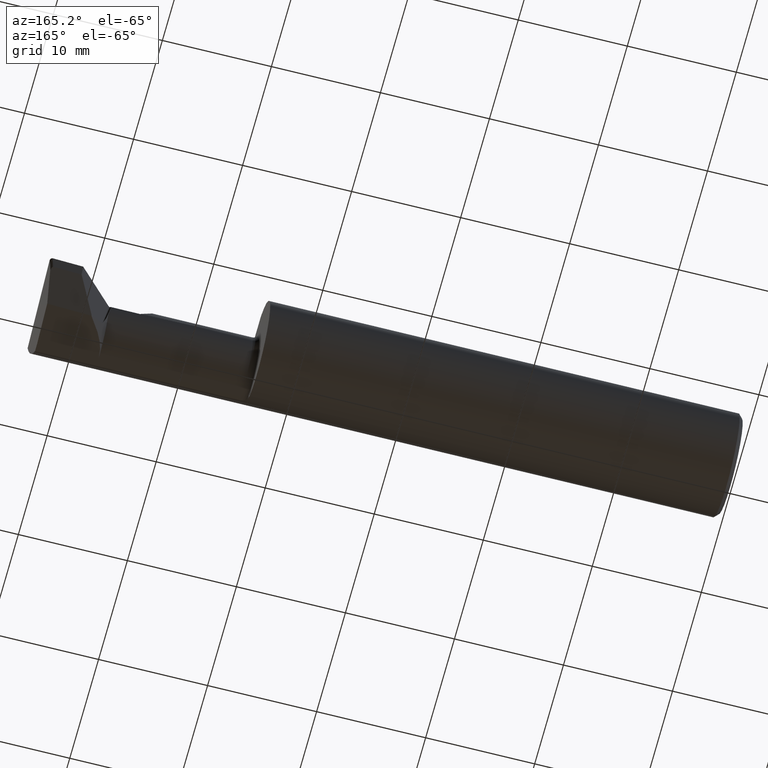
[diagram: clean part render]
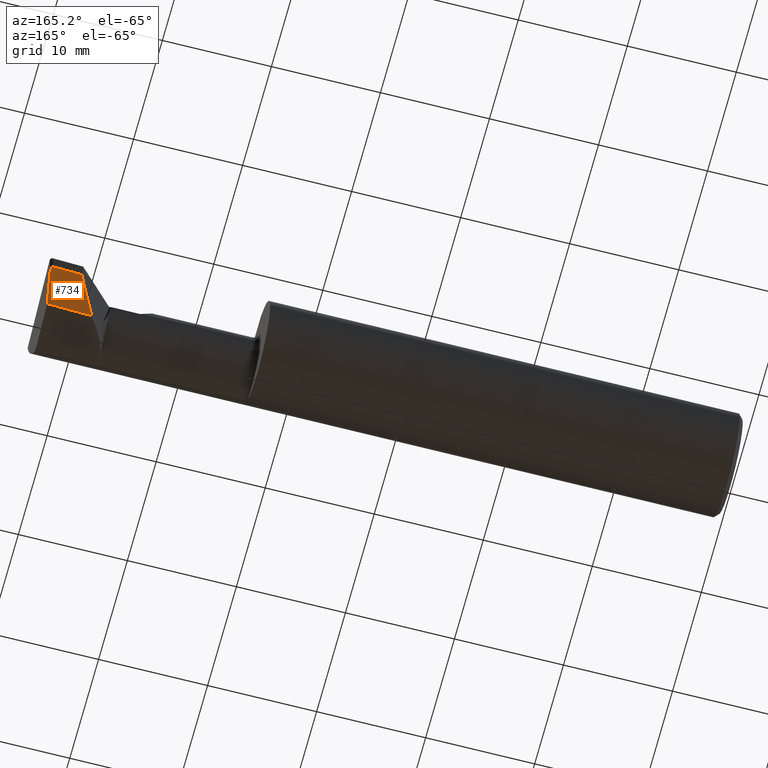
[diagram: same view with one face highlighted and labeled with its STEP entity id]
A machine part, auxiliary view. The second image highlights one B-rep face of the part: STEP entity #734.
In plain terms, the highlighted planar face has unit normal (0.0247, -0.7067, 0.7071).
Its self-contained STEP definition (entity closure, byte-faithful):
#6 = CARTESIAN_POINT ( 'NONE',  ( 2.494282959874854377, 0.1504604513405773947, -0.04698094005957075686 ) ) ;
#36 = EDGE_CURVE ( 'NONE', #881, #189, #136, .T. ) ;
#48 = ORIENTED_EDGE ( 'NONE', *, *, #197, .T. ) ;
#54 = CARTESIAN_POINT ( 'NONE',  ( 2.485072144401530903, 0.1571211000538173530, -0.04000289600932369766 ) ) ;
#73 = CARTESIAN_POINT ( 'NONE',  ( 2.320694845122096339, 0.05579781248120305875, -0.1355277751586456969 ) ) ;
#81 = ORIENTED_EDGE ( 'NONE', *, *, #36, .T. ) ;
#96 = CARTESIAN_POINT ( 'NONE',  ( -0.005608434879347946704, -0.02791221989950442781, -0.1380000000000000115 ) ) ;
#116 = CARTESIAN_POINT ( 'NONE',  ( 2.320621603346205042, 0.05497127617536411159, -0.1363512518597831957 ) ) ;
#122 = DIRECTION ( 'NONE',  ( 0.000000000000000000, -0.7073221891495887759, -0.7068913075831625425 ) ) ;
#132 = VERTEX_POINT ( 'NONE', #73 ) ;
#134 = PLANE ( 'NONE',  #397 ) ;
#136 =( BOUNDED_CURVE ( )  B_SPLINE_CURVE ( 3, ( #184, #475, #6, #842 ),
 .UNSPECIFIED., .F., .T. ) 
 B_SPLINE_CURVE_WITH_KNOTS ( ( 4, 4 ),
 ( 3.113460290453720081, 4.684741570447443770 ),
 .UNSPECIFIED. ) 
 CURVE ( )  GEOMETRIC_REPRESENTATION_ITEM ( )  RATIONAL_B_SPLINE_CURVE ( ( 1.000000000000000000, 0.8046235357022444301, 0.8046235357022444301, 1.000000000000000000 ) ) 
 REPRESENTATION_ITEM ( '' )  );
#156 = ORIENTED_EDGE ( 'NONE', *, *, #311, .T. ) ;
#184 = CARTESIAN_POINT ( 'NONE',  ( 2.485183491383149867, 0.1571191936351356011, -0.04000868722028459029 ) ) ;
#189 = VERTEX_POINT ( 'NONE', #224 ) ;
#197 = EDGE_CURVE ( 'NONE', #132, #514, #454, .T. ) ;
#199 = VERTEX_POINT ( 'NONE', #519 ) ;
#221 = CARTESIAN_POINT ( 'NONE',  ( 2.485183491383149867, 0.1571191936351356011, -0.04000868722028459029 ) ) ;
#224 = CARTESIAN_POINT ( 'NONE',  ( 2.493002116402539770, 0.1412880563531996037, -0.05610304667921357791 ) ) ;
#226 = VECTOR ( 'NONE', #317, 39.37007874015748854 ) ;
#235 = DIRECTION ( 'NONE',  ( -0.9993908270190960952, -0.03489949670248749386, 0.000000000000000000 ) ) ;
#241 = VECTOR ( 'NONE', #808, 39.37007874015748854 ) ;
#260 =( BOUNDED_CURVE ( )  B_SPLINE_CURVE ( 3, ( #741, #532, #54, #683 ),
 .UNSPECIFIED., .F., .F. ) 
 B_SPLINE_CURVE_WITH_KNOTS ( ( 4, 4 ),
 ( 3.080059520050154820, 3.113460290453720081 ),
 .UNSPECIFIED. ) 
 CURVE ( )  GEOMETRIC_REPRESENTATION_ITEM ( )  RATIONAL_B_SPLINE_CURVE ( ( 1.000000000000000000, 0.9999070345387619518, 0.9999070345387619518, 1.000000000000000000 ) ) 
 REPRESENTATION_ITEM ( '' )  );
#269 = EDGE_CURVE ( 'NONE', #514, #199, #600, .T. ) ;
#311 = EDGE_CURVE ( 'NONE', #199, #881, #260, .T. ) ;
#317 = DIRECTION ( 'NONE',  ( 0.9993908270190960952, 0.03489949670248750080, -0.000000000000000000 ) ) ;
#325 = VECTOR ( 'NONE', #737, 39.37007874015748854 ) ;
#363 = EDGE_CURVE ( 'NONE', #132, #669, #668, .T. ) ;
#391 = CARTESIAN_POINT ( 'NONE',  ( 2.481502889037944026, 0.05893962134329326641, -0.1380000000000000115 ) ) ;
#397 = AXIS2_PLACEMENT_3D ( 'NONE', #412, #567, #122 ) ;
#409 = VECTOR ( 'NONE', #235, 39.37007874015748854 ) ;
#412 = CARTESIAN_POINT ( 'NONE',  ( -0.009028585556191733724, 0.07002808114836735209, -0.04000000000000000083 ) ) ;
#415 = ORIENTED_EDGE ( 'NONE', *, *, #363, .F. ) ;
#454 = LINE ( 'NONE', #527, #325 ) ;
#464 = CARTESIAN_POINT ( 'NONE',  ( 2.320505660128782566, 0.05331747422374848167, -0.1380000000000000115 ) ) ;
#469 = CARTESIAN_POINT ( 'NONE',  ( -0.009028585556191733724, 0.07002808114836735209, -0.04000000000000000083 ) ) ;
#475 = CARTESIAN_POINT ( 'NONE',  ( 2.491043919225214509, 0.1570188547758432362, -0.04031349093800424416 ) ) ;
#514 = VERTEX_POINT ( 'NONE', #716 ) ;
#519 = CARTESIAN_POINT ( 'NONE',  ( 2.484848311694040746, 0.1571161814180041250, -0.04000000000000000083 ) ) ;
#527 = CARTESIAN_POINT ( 'NONE',  ( 1.956796199530855151, -0.5221676927763636566, -0.7004413198646619598 ) ) ;
#532 = CARTESIAN_POINT ( 'NONE',  ( 2.484960407450817144, 0.1571200958880875076, -0.03999999999999999389 ) ) ;
#567 = DIRECTION ( 'NONE',  ( 0.02467767077832642292, -0.7066760308408335245, 0.7071067811865487940 ) ) ;
#589 = ORIENTED_EDGE ( 'NONE', *, *, #269, .T. ) ;
#594 = EDGE_CURVE ( 'NONE', #694, #669, #802, .T. ) ;
#600 = LINE ( 'NONE', #469, #226 ) ;
#603 = CARTESIAN_POINT ( 'NONE',  ( 2.320505660128782566, 0.05331747422374848167, -0.1380000000000000115 ) ) ;
#635 = ORIENTED_EDGE ( 'NONE', *, *, #594, .T. ) ;
#642 = EDGE_CURVE ( 'NONE', #189, #694, #674, .T. ) ;
#653 = EDGE_LOOP ( 'NONE', ( #589, #156, #81, #892, #635, #415, #48 ) ) ;
#668 = B_SPLINE_CURVE_WITH_KNOTS ( 'NONE', 3,
 ( #904, #116, #671, #464 ),
 .UNSPECIFIED., .F., .F.,
 ( 4, 4 ),
 ( 0.0001006835341432376003, 0.0001897596385909864974 ),
 .UNSPECIFIED. ) ;
#669 = VERTEX_POINT ( 'NONE', #603 ) ;
#671 = CARTESIAN_POINT ( 'NONE',  ( 2.320558517586286396, 0.05414443408934701413, -0.1371753885946717655 ) ) ;
#674 = LINE ( 'NONE', #902, #241 ) ;
#683 = CARTESIAN_POINT ( 'NONE',  ( 2.485183491383149867, 0.1571191936351356011, -0.04000868722028459029 ) ) ;
#694 = VERTEX_POINT ( 'NONE', #391 ) ;
#716 = CARTESIAN_POINT ( 'NONE',  ( 2.382230682459234750, 0.1535326948417072013, -0.04000000000000000777 ) ) ;
#734 = ADVANCED_FACE ( 'NONE', ( #761 ), #134, .F. ) ;
#737 = DIRECTION ( 'NONE',  ( 0.4105645555054180940, 0.6520830831288172424, 0.6373573553822489135 ) ) ;
#741 = CARTESIAN_POINT ( 'NONE',  ( 2.484848311694040746, 0.1571161814180041250, -0.04000000000000000083 ) ) ;
#761 = FACE_OUTER_BOUND ( 'NONE', #653, .T. ) ;
#802 = LINE ( 'NONE', #96, #409 ) ;
#808 = DIRECTION ( 'NONE',  ( -0.09853043833516439420, -0.7055976145599081040, -0.7017291208499527588 ) ) ;
#842 = CARTESIAN_POINT ( 'NONE',  ( 2.493002116402539770, 0.1412880563531996037, -0.05610304667921357791 ) ) ;
#881 = VERTEX_POINT ( 'NONE', #221 ) ;
#892 = ORIENTED_EDGE ( 'NONE', *, *, #642, .T. ) ;
#902 = CARTESIAN_POINT ( 'NONE',  ( 2.464870979300730180, -0.06016505366316325654, -0.2564516743775128726 ) ) ;
#904 = CARTESIAN_POINT ( 'NONE',  ( 2.320694845122096339, 0.05579781248120305875, -0.1355277751586456969 ) ) ;